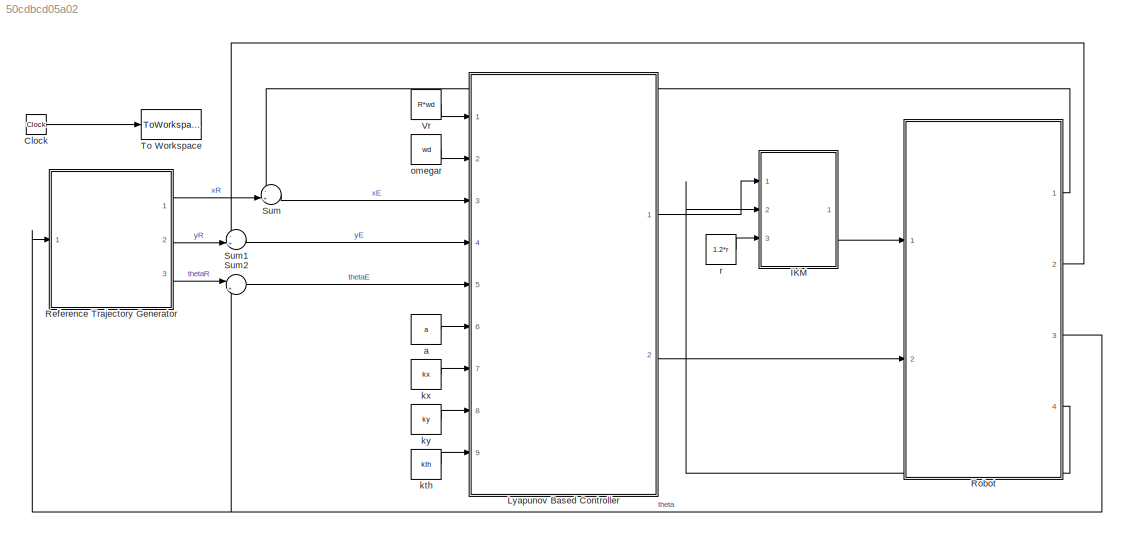
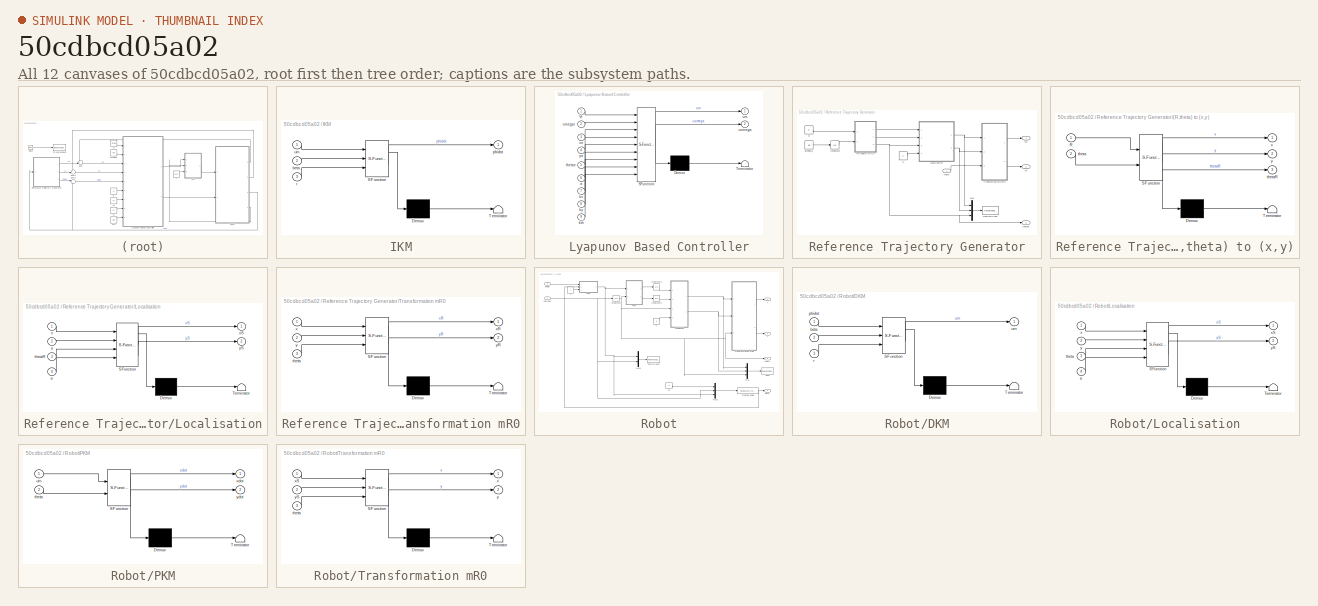
[diagram: thumbnail index - all 12 canvases of the model, root first then tree order]
MODEL slx_50cdbcd05a02
KIND model
CONFIG AbsTol = auto
CONFIG FixedStep = 0.001
CONFIG MaxStep = auto
CONFIG MinStep = auto
CONFIG RelTol = 1e-3
CONFIG SampleTimeConstraint = Unconstrained
CONFIG Solver = ode4
CONFIG SolverMode = Auto
CONFIG SolverName = ode4
CONFIG StartTime = 0.0
CONFIG StopTime = 50
BLOCK [Clock] Clock
BLOCK [SubSystem] IKM
  ErrorFcn = Stateflow.Translate.translate
  PermitHierarchicalResolution = ExplicitOnly
  Ports = [3, 1]
  RequestExecContextInheritance = off
  SFBlockType = MATLAB Function
  TreatAsAtomicUnit = on
  Variant = off
BLOCK [Demux] IKM/ Demux 
  Outputs = 1
  Ports = [1, 1]
BLOCK [S-Function] IKM/ SFunction 
  EnableBusSupport = on
  FunctionName = sf_sfun
  PortCounts = [3 2]
  Ports = [3, 2]
  SFunctionDeploymentMode = off
  Tag = Stateflow S-Function lyapunov11 8
BLOCK [Terminator] IKM/ Terminator 
BLOCK [Inport] IKM/beta
  IconDisplay = Port number
  Port = 2
BLOCK [Outport] IKM/phidot
  IconDisplay = Port number
BLOCK [Inport] IKM/r
  IconDisplay = Port number
  Port = 3
BLOCK [Inport] IKM/um
  IconDisplay = Port number
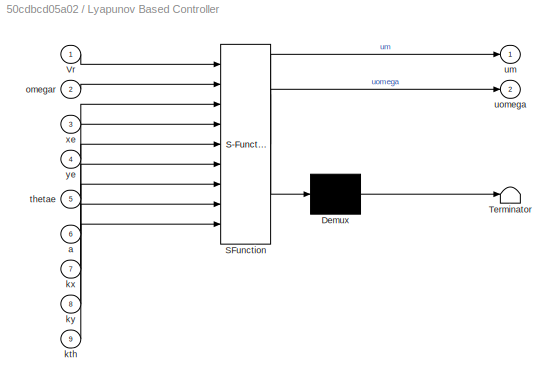
BLOCK [SubSystem] Lyapunov Based Controller
  ErrorFcn = Stateflow.Translate.translate
  PermitHierarchicalResolution = ExplicitOnly
  Ports = [9, 2]
  RequestExecContextInheritance = off
  SFBlockType = MATLAB Function
  TreatAsAtomicUnit = on
  Variant = off
BLOCK [Demux] Lyapunov Based Controller/ Demux 
  Outputs = 1
  Ports = [1, 1]
BLOCK [S-Function] Lyapunov Based Controller/ SFunction 
  EnableBusSupport = on
  FunctionName = sf_sfun
  PortCounts = [9 3]
  Ports = [9, 3]
  SFunctionDeploymentMode = off
  Tag = Stateflow S-Function lyapunov11 6
BLOCK [Terminator] Lyapunov Based Controller/ Terminator 
BLOCK [Inport] Lyapunov Based Controller/Vr
  IconDisplay = Port number
BLOCK [Inport] Lyapunov Based Controller/a
  IconDisplay = Port number
  Port = 6
BLOCK [Inport] Lyapunov Based Controller/kth
  IconDisplay = Port number
  Port = 9
BLOCK [Inport] Lyapunov Based Controller/kx
  IconDisplay = Port number
  Port = 7
BLOCK [Inport] Lyapunov Based Controller/ky
  IconDisplay = Port number
  Port = 8
BLOCK [Inport] Lyapunov Based Controller/omegar
  IconDisplay = Port number
  Port = 2
BLOCK [Inport] Lyapunov Based Controller/thetae
  IconDisplay = Port number
  Port = 5
BLOCK [Outport] Lyapunov Based Controller/um
  IconDisplay = Port number
BLOCK [Outport] Lyapunov Based Controller/uomega
  IconDisplay = Port number
  Port = 2
BLOCK [Inport] Lyapunov Based Controller/xe
  IconDisplay = Port number
  Port = 3
BLOCK [Inport] Lyapunov Based Controller/ye
  IconDisplay = Port number
  Port = 4
BLOCK [SubSystem] Reference Trajectory Generator
  Ports = [1, 3]
  RequestExecContextInheritance = off
  Variant = off
BLOCK [SubSystem] Reference Trajectory Generator/(R,theta) to (x,y)
  ErrorFcn = Stateflow.Translate.translate
  PermitHierarchicalResolution = ExplicitOnly
  Ports = [2, 3]
  RequestExecContextInheritance = off
  SFBlockType = MATLAB Function
  TreatAsAtomicUnit = on
  Variant = off
BLOCK [Demux] Reference Trajectory Generator/(R,theta) to (x,y)/ Demux 
  Outputs = 1
  Ports = [1, 1]
BLOCK [S-Function] Reference Trajectory Generator/(R,theta) to (x,y)/ SFunction 
  EnableBusSupport = on
  FunctionName = sf_sfun
  PortCounts = [2 4]
  Ports = [2, 4]
  SFunctionDeploymentMode = off
  Tag = Stateflow S-Function lyapunov11 2
BLOCK [Terminator] Reference Trajectory Generator/(R,theta) to (x,y)/ Terminator 
BLOCK [Inport] Reference Trajectory Generator/(R,theta) to (x,y)/R
  IconDisplay = Port number
BLOCK [Inport] Reference Trajectory Generator/(R,theta) to (x,y)/theta
  IconDisplay = Port number
  Port = 2
BLOCK [Outport] Reference Trajectory Generator/(R,theta) to (x,y)/thetaR
  IconDisplay = Port number
  Port = 3
BLOCK [Outport] Reference Trajectory Generator/(R,theta) to (x,y)/x
  IconDisplay = Port number
BLOCK [Outport] Reference Trajectory Generator/(R,theta) to (x,y)/y
  IconDisplay = Port number
  Port = 2
BLOCK [ToWorkspace] Reference Trajectory Generator/Desired Pose
  FixptAsFi = on
  MaxDataPoints = inf
  Ports = [1]
  SampleTime = -1
  Save2DSignal = 3-D array (concatenate along third dimension)
  VariableName = hd
BLOCK [Integrator] Reference Trajectory Generator/Integrator
  Ports = [1, 1]
BLOCK [SubSystem] Reference Trajectory Generator/Localisation
  ErrorFcn = Stateflow.Translate.translate
  PermitHierarchicalResolution = ExplicitOnly
  Ports = [4, 2]
  RequestExecContextInheritance = off
  SFBlockType = MATLAB Function
  TreatAsAtomicUnit = on
  Variant = off
BLOCK [Demux] Reference Trajectory Generator/Localisation/ Demux 
  Outputs = 1
  Ports = [1, 1]
BLOCK [S-Function] Reference Trajectory Generator/Localisation/ SFunction 
  EnableBusSupport = on
  FunctionName = sf_sfun
  PortCounts = [4 3]
  Ports = [4, 3]
  SFunctionDeploymentMode = off
  Tag = Stateflow S-Function lyapunov11 7
BLOCK [Terminator] Reference Trajectory Generator/Localisation/ Terminator 
BLOCK [Inport] Reference Trajectory Generator/Localisation/a
  IconDisplay = Port number
  Port = 4
BLOCK [Inport] Reference Trajectory Generator/Localisation/thetaR
  IconDisplay = Port number
  Port = 3
BLOCK [Inport] Reference Trajectory Generator/Localisation/x
  IconDisplay = Port number
BLOCK [Outport] Reference Trajectory Generator/Localisation/xS
  IconDisplay = Port number
BLOCK [Inport] Reference Trajectory Generator/Localisation/y
  IconDisplay = Port number
  Port = 2
BLOCK [Outport] Reference Trajectory Generator/Localisation/yS
  IconDisplay = Port number
  Port = 2
BLOCK [Mux] Reference Trajectory Generator/Mux
  DisplayOption = bar
  Inputs = 3
  Ports = [3, 1]
BLOCK [Constant] Reference Trajectory Generator/R
  Value = R
BLOCK [SubSystem] Reference Trajectory Generator/Transformation mR0
  ErrorFcn = Stateflow.Translate.translate
  PermitHierarchicalResolution = ExplicitOnly
  Ports = [3, 2]
  RequestExecContextInheritance = off
  SFBlockType = MATLAB Function
  TreatAsAtomicUnit = on
  Variant = off
BLOCK [Demux] Reference Trajectory Generator/Transformation mR0/ Demux 
  Outputs = 1
  Ports = [1, 1]
BLOCK [S-Function] Reference Trajectory Generator/Transformation mR0/ SFunction 
  EnableBusSupport = on
  FunctionName = sf_sfun
  PortCounts = [3 3]
  Ports = [3, 3]
  SFunctionDeploymentMode = off
  Tag = Stateflow S-Function lyapunov11 1
BLOCK [Terminator] Reference Trajectory Generator/Transformation mR0/ Terminator 
BLOCK [Inport] Reference Trajectory Generator/Transformation mR0/theta
  IconDisplay = Port number
  Port = 3
BLOCK [Inport] Reference Trajectory Generator/Transformation mR0/x
  IconDisplay = Port number
BLOCK [Outport] Reference Trajectory Generator/Transformation mR0/xR
  IconDisplay = Port number
BLOCK [Inport] Reference Trajectory Generator/Transformation mR0/y
  IconDisplay = Port number
  Port = 2
BLOCK [Outport] Reference Trajectory Generator/Transformation mR0/yR
  IconDisplay = Port number
  Port = 2
BLOCK [Constant] Reference Trajectory Generator/a
  Value = a
BLOCK [Constant] Reference Trajectory Generator/omega_d
  Value = wd
BLOCK [Inport] Reference Trajectory Generator/theta
  IconDisplay = Port number
BLOCK [Outport] Reference Trajectory Generator/thetaR
  IconDisplay = Port number
  Port = 3
BLOCK [Outport] Reference Trajectory Generator/xR
  IconDisplay = Port number
BLOCK [Outport] Reference Trajectory Generator/yR
  IconDisplay = Port number
  Port = 2
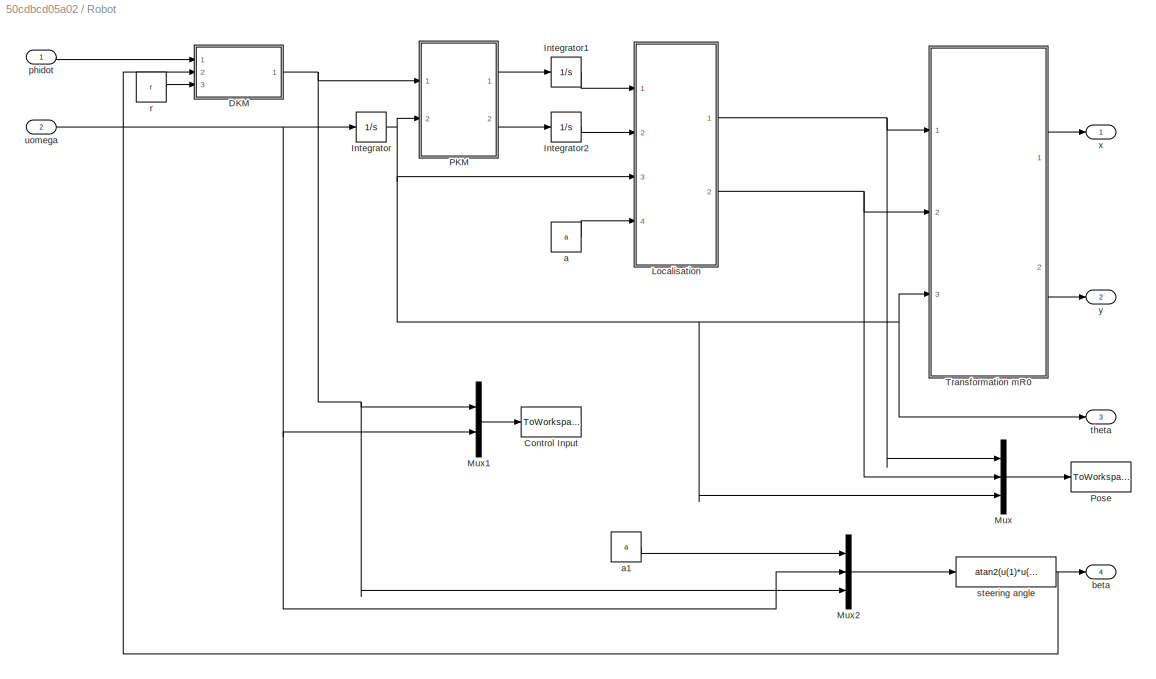
BLOCK [SubSystem] Robot
  Ports = [2, 4]
  RequestExecContextInheritance = off
  Variant = off
BLOCK [ToWorkspace] Robot/Control Input
  FixptAsFi = on
  MaxDataPoints = inf
  Ports = [1]
  SampleTime = -1
  Save2DSignal = 3-D array (concatenate along third dimension)
  VariableName = u
BLOCK [SubSystem] Robot/DKM
  ErrorFcn = Stateflow.Translate.translate
  PermitHierarchicalResolution = ExplicitOnly
  Ports = [3, 1]
  RequestExecContextInheritance = off
  SFBlockType = MATLAB Function
  TreatAsAtomicUnit = on
  Variant = off
BLOCK [Demux] Robot/DKM/ Demux 
  Outputs = 1
  Ports = [1, 1]
BLOCK [S-Function] Robot/DKM/ SFunction 
  EnableBusSupport = on
  FunctionName = sf_sfun
  PortCounts = [3 2]
  Ports = [3, 2]
  SFunctionDeploymentMode = off
  Tag = Stateflow S-Function lyapunov11 9
BLOCK [Terminator] Robot/DKM/ Terminator 
BLOCK [Inport] Robot/DKM/beta
  IconDisplay = Port number
  Port = 2
BLOCK [Inport] Robot/DKM/phidot
  IconDisplay = Port number
BLOCK [Inport] Robot/DKM/r
  IconDisplay = Port number
  Port = 3
BLOCK [Outport] Robot/DKM/um
  IconDisplay = Port number
BLOCK [Integrator] Robot/Integrator
  InitialCondition = theta0
  Ports = [1, 1]
BLOCK [Integrator] Robot/Integrator1
  InitialCondition = x0
  Ports = [1, 1]
BLOCK [Integrator] Robot/Integrator2
  InitialCondition = y0
  Ports = [1, 1]
BLOCK [SubSystem] Robot/Localisation
  ErrorFcn = Stateflow.Translate.translate
  PermitHierarchicalResolution = ExplicitOnly
  Ports = [4, 2]
  RequestExecContextInheritance = off
  SFBlockType = MATLAB Function
  TreatAsAtomicUnit = on
  Variant = off
BLOCK [Demux] Robot/Localisation/ Demux 
  Outputs = 1
  Ports = [1, 1]
BLOCK [S-Function] Robot/Localisation/ SFunction 
  EnableBusSupport = on
  FunctionName = sf_sfun
  PortCounts = [4 3]
  Ports = [4, 3]
  SFunctionDeploymentMode = off
  Tag = Stateflow S-Function lyapunov11 4
BLOCK [Terminator] Robot/Localisation/ Terminator 
BLOCK [Inport] Robot/Localisation/a
  IconDisplay = Port number
  Port = 4
BLOCK [Inport] Robot/Localisation/theta
  IconDisplay = Port number
  Port = 3
BLOCK [Inport] Robot/Localisation/x
  IconDisplay = Port number
BLOCK [Outport] Robot/Localisation/xS
  IconDisplay = Port number
BLOCK [Inport] Robot/Localisation/y
  IconDisplay = Port number
  Port = 2
BLOCK [Outport] Robot/Localisation/yS
  IconDisplay = Port number
  Port = 2
BLOCK [Mux] Robot/Mux
  DisplayOption = bar
  Inputs = 3
  Ports = [3, 1]
BLOCK [Mux] Robot/Mux1
  DisplayOption = bar
  Inputs = 2
  Ports = [2, 1]
BLOCK [Mux] Robot/Mux2
  DisplayOption = bar
  Inputs = 3
  Ports = [3, 1]
BLOCK [SubSystem] Robot/PKM
  ErrorFcn = Stateflow.Translate.translate
  PermitHierarchicalResolution = ExplicitOnly
  Ports = [2, 2]
  RequestExecContextInheritance = off
  SFBlockType = MATLAB Function
  TreatAsAtomicUnit = on
  Variant = off
BLOCK [Demux] Robot/PKM/ Demux 
  Outputs = 1
  Ports = [1, 1]
BLOCK [S-Function] Robot/PKM/ SFunction 
  EnableBusSupport = on
  FunctionName = sf_sfun
  PortCounts = [2 3]
  Ports = [2, 3]
  SFunctionDeploymentMode = off
  Tag = Stateflow S-Function lyapunov11 3
BLOCK [Terminator] Robot/PKM/ Terminator 
BLOCK [Inport] Robot/PKM/theta
  IconDisplay = Port number
  Port = 2
BLOCK [Inport] Robot/PKM/um
  IconDisplay = Port number
BLOCK [Outport] Robot/PKM/xdot
  IconDisplay = Port number
BLOCK [Outport] Robot/PKM/ydot
  IconDisplay = Port number
  Port = 2
BLOCK [ToWorkspace] Robot/Pose
  FixptAsFi = on
  MaxDataPoints = inf
  Ports = [1]
  SampleTime = -1
  Save2DSignal = 3-D array (concatenate along third dimension)
  VariableName = h
BLOCK [SubSystem] Robot/Transformation mR0
  ErrorFcn = Stateflow.Translate.translate
  PermitHierarchicalResolution = ExplicitOnly
  Ports = [3, 2]
  RequestExecContextInheritance = off
  SFBlockType = MATLAB Function
  TreatAsAtomicUnit = on
  Variant = off
BLOCK [Demux] Robot/Transformation mR0/ Demux 
  Outputs = 1
  Ports = [1, 1]
BLOCK [S-Function] Robot/Transformation mR0/ SFunction 
  EnableBusSupport = on
  FunctionName = sf_sfun
  PortCounts = [3 3]
  Ports = [3, 3]
  SFunctionDeploymentMode = off
  Tag = Stateflow S-Function lyapunov11 5
BLOCK [Terminator] Robot/Transformation mR0/ Terminator 
BLOCK [Inport] Robot/Transformation mR0/theta
  IconDisplay = Port number
  Port = 3
BLOCK [Outport] Robot/Transformation mR0/x
  IconDisplay = Port number
BLOCK [Inport] Robot/Transformation mR0/xS
  IconDisplay = Port number
BLOCK [Outport] Robot/Transformation mR0/y
  IconDisplay = Port number
  Port = 2
BLOCK [Inport] Robot/Transformation mR0/yS
  IconDisplay = Port number
  Port = 2
BLOCK [Constant] Robot/a
  Value = a
BLOCK [Constant] Robot/a1
  Value = a
BLOCK [Outport] Robot/beta
  IconDisplay = Port number
  Port = 4
BLOCK [Inport] Robot/phidot
  IconDisplay = Port number
BLOCK [Constant] Robot/r
  Value = r
BLOCK [Fcn] Robot/steering angle
  Expr = atan2(u(1)*u(2),u(3))
BLOCK [Outport] Robot/theta
  IconDisplay = Port number
  Port = 3
BLOCK [Inport] Robot/uomega
  IconDisplay = Port number
  Port = 2
BLOCK [Outport] Robot/x
  IconDisplay = Port number
BLOCK [Outport] Robot/y
  IconDisplay = Port number
  Port = 2
BLOCK [Sum] Sum
  IconShape = round
  InputSameDT = off
  Inputs = -+|
  OutDataTypeStr = Inherit: Inherit via internal rule
  Ports = [2, 1]
  SaturateOnIntegerOverflow = off
BLOCK [Sum] Sum1
  IconShape = round
  InputSameDT = off
  Inputs = -+|
  OutDataTypeStr = Inherit: Inherit via internal rule
  Ports = [2, 1]
  SaturateOnIntegerOverflow = off
BLOCK [Sum] Sum2
  IconShape = round
  InputSameDT = off
  Inputs = |+-
  OutDataTypeStr = Inherit: Inherit via internal rule
  Ports = [2, 1]
  SaturateOnIntegerOverflow = off
BLOCK [ToWorkspace] To Workspace
  FixptAsFi = on
  MaxDataPoints = inf
  Ports = [1]
  SampleTime = -1
  Save2DSignal = 3-D array (concatenate along third dimension)
  VariableName = t
BLOCK [Constant] Vr
  Value = R*wd
BLOCK [Constant] a
  Value = a
BLOCK [Constant] kth
  Value = kth
BLOCK [Constant] kx
  Value = kx
BLOCK [Constant] ky
  Value = ky
BLOCK [Constant] omegar
  Value = wd
BLOCK [Constant] r
  Value = 1.2*r
LINE Clock:1 -> To Workspace:1
LINE IKM:1 -> Robot:1
LINE Lyapunov Based Controller:1 -> IKM:1
LINE Lyapunov Based Controller:2 -> Robot:2
LINE Reference Trajectory Generator/(R,theta) to (x,y):1 -> Reference Trajectory Generator/Localisation:1
LINE Reference Trajectory Generator/(R,theta) to (x,y):2 -> Reference Trajectory Generator/Localisation:2
NET Reference Trajectory Generator/(R,theta) to (x,y):3 -> Reference Trajectory Generator/Localisation:3, Reference Trajectory Generator/Mux:3, Reference Trajectory Generator/thetaR:1
LINE Reference Trajectory Generator/Integrator:1 -> Reference Trajectory Generator/(R,theta) to (x,y):2
NET Reference Trajectory Generator/Localisation:1 -> Reference Trajectory Generator/Mux:1, Reference Trajectory Generator/Transformation mR0:1
NET Reference Trajectory Generator/Localisation:2 -> Reference Trajectory Generator/Mux:2, Reference Trajectory Generator/Transformation mR0:2
LINE Reference Trajectory Generator/Mux:1 -> Reference Trajectory Generator/Desired Pose:1
LINE Reference Trajectory Generator/R:1 -> Reference Trajectory Generator/(R,theta) to (x,y):1
LINE Reference Trajectory Generator/Transformation mR0:1 -> Reference Trajectory Generator/xR:1
LINE Reference Trajectory Generator/Transformation mR0:2 -> Reference Trajectory Generator/yR:1
LINE Reference Trajectory Generator/a:1 -> Reference Trajectory Generator/Localisation:4
LINE Reference Trajectory Generator/omega_d:1 -> Reference Trajectory Generator/Integrator:1
LINE Reference Trajectory Generator/theta:1 -> Reference Trajectory Generator/Transformation mR0:3
LINE Reference Trajectory Generator:1 -> Sum:2
LINE Reference Trajectory Generator:2 -> Sum1:2
LINE Reference Trajectory Generator:3 -> Sum2:1
NET Robot/DKM:1 -> Robot/Mux1:1, Robot/Mux2:3, Robot/PKM:1
LINE Robot/Integrator1:1 -> Robot/Localisation:1
LINE Robot/Integrator2:1 -> Robot/Localisation:2
NET Robot/Integrator:1 -> Robot/Localisation:3, Robot/Mux:3, Robot/PKM:2, Robot/Transformation mR0:3, Robot/theta:1
NET Robot/Localisation:1 -> Robot/Mux:1, Robot/Transformation mR0:1
NET Robot/Localisation:2 -> Robot/Mux:2, Robot/Transformation mR0:2
LINE Robot/Mux1:1 -> Robot/Control Input:1
LINE Robot/Mux2:1 -> Robot/steering angle:1
LINE Robot/Mux:1 -> Robot/Pose:1
LINE Robot/PKM:1 -> Robot/Integrator1:1
LINE Robot/PKM:2 -> Robot/Integrator2:1
LINE Robot/Transformation mR0:1 -> Robot/x:1
LINE Robot/Transformation mR0:2 -> Robot/y:1
LINE Robot/a1:1 -> Robot/Mux2:1
LINE Robot/a:1 -> Robot/Localisation:4
LINE Robot/phidot:1 -> Robot/DKM:1
LINE Robot/r:1 -> Robot/DKM:3
NET Robot/steering angle:1 -> Robot/DKM:2, Robot/beta:1
NET Robot/uomega:1 -> Robot/Integrator:1, Robot/Mux1:2, Robot/Mux2:2
LINE Robot:1 -> Sum:1
LINE Robot:2 -> Sum1:1
NET Robot:3 -> Reference Trajectory Generator:1, Sum2:2
LINE Robot:4 -> IKM:2
LINE Sum1:1 -> Lyapunov Based Controller:4
LINE Sum2:1 -> Lyapunov Based Controller:5
LINE Sum:1 -> Lyapunov Based Controller:3
LINE Vr:1 -> Lyapunov Based Controller:1
LINE a:1 -> Lyapunov Based Controller:6
LINE kth:1 -> Lyapunov Based Controller:9
LINE kx:1 -> Lyapunov Based Controller:7
LINE ky:1 -> Lyapunov Based Controller:8
LINE omegar:1 -> Lyapunov Based Controller:2
LINE r:1 -> IKM:3
note: NET lines group one-source signal fan-out (src -> all destinations, sorted); 1:1 wires keep LINE
CHART Reference Trajectory 
Generator/Transformation
mR0 states=1 transitions=1
  STATE_LABEL 'eML_blk_kernel()'
  STATE_LABEL 'SCRIPT:\nfunction [xR,yR]= mR0(x,y,theta)\n%#codegen\n\nxR=cos(theta)*x+sin(theta)*y;\nyR=-sin(theta)*x+cos(theta)*y;\nend\n'
CHART Reference Trajectory 
Generator/(R,theta) to (x,y) states=1 transitions=1
  STATE_LABEL 'eML_blk_kernel()'
  STATE_LABEL 'SCRIPT:\nfunction [x,y,thetaR]= toCartesian(R,theta)\n%#codegen\n\nx=R*cos(theta);\ny=R*sin(theta);\nthetaR=theta+pi/2;\nend\n'
CHART Robot/PKM states=1 transitions=1
  STATE_LABEL 'eML_blk_kernel()'
  STATE_LABEL 'SCRIPT:\nfunction [xdot,ydot]= PKM(um,theta)\n%#codegen\nxdot=um*cos(theta);\nydot=um*sin(theta);\nend\n'
CHART Robot/Localisation states=1 transitions=1
  STATE_LABEL 'eML_blk_kernel()'
  STATE_LABEL 'SCRIPT:\nfunction [xS,yS]= Localisation(x,y,theta,a)\n%#codegen\nxS=x+a*cos(theta);\nyS=y+a*sin(theta);\nend\n'
CHART Robot/Transformation
mR0 states=1 transitions=1
  STATE_LABEL 'eML_blk_kernel()'
  STATE_LABEL 'SCRIPT:\nfunction [x,y]= mR0(xS,yS,theta)\n%#codegen\n\nx=cos(theta)*xS+sin(theta)*yS;\ny=-sin(theta)*xS+cos(theta)*yS;\nend\n'
CHART Lyapunov Based Controller states=1 transitions=1
  STATE_LABEL 'eML_blk_kernel()'
  STATE_LABEL 'SCRIPT:\nfunction [um,uomega] = controller(Vr,omegar,xe,ye,thetae,a,kx,ky,kth)\n%#codegen\num=Vr*cos(thetae)-omegar*a*sin(thetae)+kx*xe;\nuomega=((Vr*sin(thetae)+omegar*a*cos(thetae))*ky*ye+omegar*thetae+kth*thetae^2)/(a*ky*ye+thetae);\nend'
CHART Reference Trajectory 
Generator/Localisation states=1 transitions=1
  STATE_LABEL 'eML_blk_kernel()'
  STATE_LABEL 'SCRIPT:\nfunction [xS,yS]= Localisation(x,y,thetaR,a)\n%#codegen\nxS=x+a*cos(thetaR);\nyS=y+a*sin(thetaR);\nend\n'
CHART IKM states=1 transitions=1
  STATE_LABEL 'eML_blk_kernel()'
  STATE_LABEL 'SCRIPT:\nfunction phidot = IKM(um,beta,r)\n%#codegen\nphidot=(1/(r*cos(beta)))*um;\nend\n'
CHART Robot/DKM states=1 transitions=1
  STATE_LABEL 'eML_blk_kernel()'
  STATE_LABEL 'SCRIPT:\nfunction um = DKM(phidot,beta,r)\n%#codegen\num=r*cos(beta)*phidot;\nend\n'
